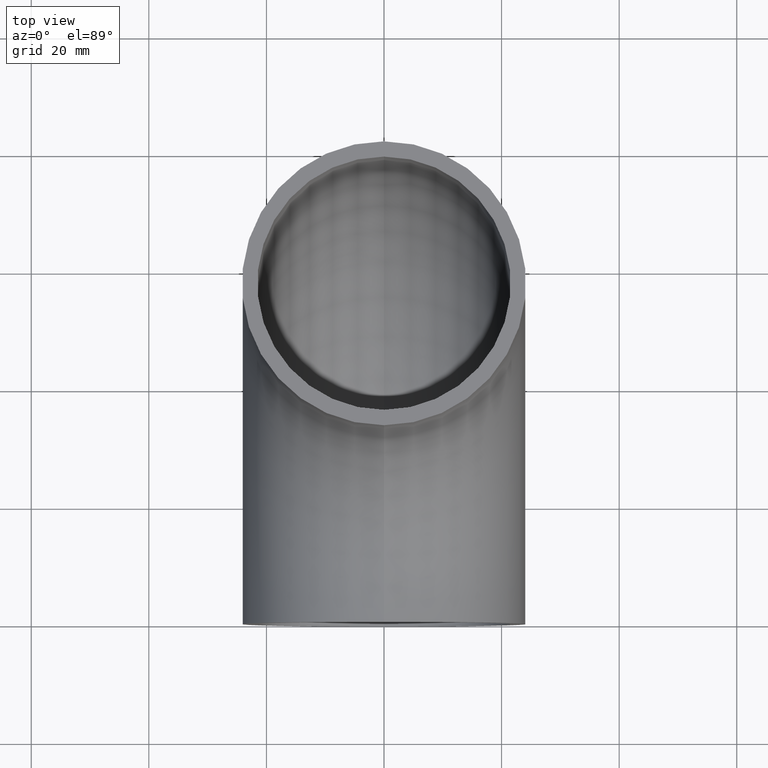
[diagram: clean part render]
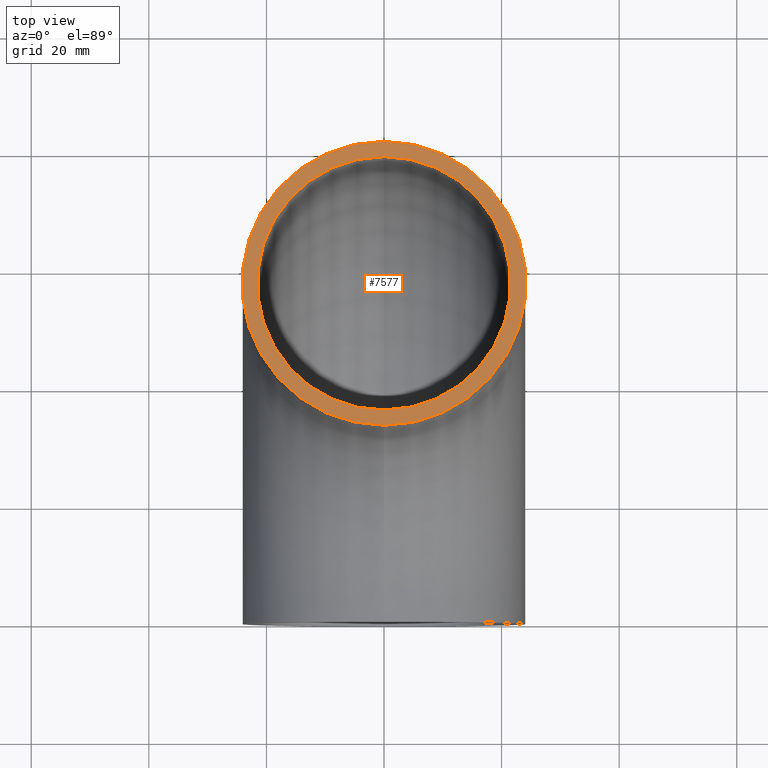
[diagram: same view with one face highlighted and labeled with its STEP entity id]
A machine part, top view. The second image highlights one B-rep face of the part: STEP entity #7577.
In plain terms, the highlighted planar face has unit normal (0, 0, 1).
Its self-contained STEP definition (entity closure, byte-faithful):
#124 = CARTESIAN_POINT ( 'NONE',  ( 0.0000000000000000000, 57.00000000000000000, -3.490243377569956500E-015 ) ) ;
#152 = ORIENTED_EDGE ( 'NONE', *, *, #7224, .T. ) ;
#188 = VERTEX_POINT ( 'NONE', #1510 ) ;
#198 = CARTESIAN_POINT ( 'NONE',  ( 0.0000000000000000000, 35.45000000000000300, -2.170686451488683500E-015 ) ) ;
#316 = DIRECTION ( 'NONE',  ( 0.0000000000000000000, 6.123233995736766000E-017, 1.000000000000000000 ) ) ;
#490 = VERTEX_POINT ( 'NONE', #198 ) ;
#679 = PLANE ( 'NONE',  #7261 ) ;
#1160 = CARTESIAN_POINT ( 'NONE',  ( 0.0000000000000000000, 57.00000000000000000, -3.490243377569956500E-015 ) ) ;
#1510 = CARTESIAN_POINT ( 'NONE',  ( 0.0000000000000000000, 81.15000000000000600, -4.969004387540385400E-015 ) ) ;
#1727 = DIRECTION ( 'NONE',  ( 0.0000000000000000000, 6.123233995736766000E-017, 1.000000000000000000 ) ) ;
#1777 = EDGE_CURVE ( 'NONE', #5979, #188, #5485, .T. ) ;
#1787 = CIRCLE ( 'NONE', #8798, 24.14999999999999900 ) ;
#1840 = DIRECTION ( 'NONE',  ( 0.0000000000000000000, -1.000000000000000000, 6.123233995736767300E-017 ) ) ;
#2279 = AXIS2_PLACEMENT_3D ( 'NONE', #4430, #3544, #3508 ) ;
#2821 = FACE_OUTER_BOUND ( 'NONE', #9007, .T. ) ;
#2904 = EDGE_CURVE ( 'NONE', #7886, #490, #4942, .T. ) ;
#3302 = DIRECTION ( 'NONE',  ( 0.0000000000000000000, 6.123233995736766000E-017, 1.000000000000000000 ) ) ;
#3508 = DIRECTION ( 'NONE',  ( 0.0000000000000000000, -1.000000000000000000, 6.123233995736766000E-017 ) ) ;
#3544 = DIRECTION ( 'NONE',  ( 0.0000000000000000000, 6.123233995736766000E-017, 1.000000000000000000 ) ) ;
#4430 = CARTESIAN_POINT ( 'NONE',  ( 0.0000000000000000000, 57.00000000000000000, -3.490243377569956500E-015 ) ) ;
#4942 = CIRCLE ( 'NONE', #2279, 21.55000000000000100 ) ;
#5485 = CIRCLE ( 'NONE', #9484, 24.14999999999999900 ) ;
#5979 = VERTEX_POINT ( 'NONE', #10712 ) ;
#6182 = ORIENTED_EDGE ( 'NONE', *, *, #2904, .F. ) ;
#6446 = CARTESIAN_POINT ( 'NONE',  ( 0.0000000000000000000, 57.00000000000000000, -3.490243377569956500E-015 ) ) ;
#6732 = ORIENTED_EDGE ( 'NONE', *, *, #1777, .T. ) ;
#6826 = EDGE_LOOP ( 'NONE', ( #10045, #6182 ) ) ;
#7224 = EDGE_CURVE ( 'NONE', #188, #5979, #1787, .T. ) ;
#7261 = AXIS2_PLACEMENT_3D ( 'NONE', #6446, #3302, #7307 ) ;
#7273 = DIRECTION ( 'NONE',  ( 0.0000000000000000000, -1.000000000000000000, 6.123233995736766000E-017 ) ) ;
#7307 = DIRECTION ( 'NONE',  ( 0.0000000000000000000, -1.000000000000000000, 6.123233995736766000E-017 ) ) ;
#7569 = EDGE_CURVE ( 'NONE', #490, #7886, #10576, .T. ) ;
#7577 = ADVANCED_FACE ( 'NONE', ( #9942, #2821 ), #679, .T. ) ;
#7886 = VERTEX_POINT ( 'NONE', #8061 ) ;
#8061 = CARTESIAN_POINT ( 'NONE',  ( 0.0000000000000000000, 78.55000000000001100, -4.809800303651230200E-015 ) ) ;
#8554 = DIRECTION ( 'NONE',  ( 0.0000000000000000000, -1.000000000000000000, 6.123233995736767300E-017 ) ) ;
#8798 = AXIS2_PLACEMENT_3D ( 'NONE', #1160, #316, #8554 ) ;
#8846 = DIRECTION ( 'NONE',  ( 0.0000000000000000000, 6.123233995736766000E-017, 1.000000000000000000 ) ) ;
#9007 = EDGE_LOOP ( 'NONE', ( #6732, #152 ) ) ;
#9130 = AXIS2_PLACEMENT_3D ( 'NONE', #9641, #8846, #7273 ) ;
#9484 = AXIS2_PLACEMENT_3D ( 'NONE', #124, #1727, #1840 ) ;
#9641 = CARTESIAN_POINT ( 'NONE',  ( 0.0000000000000000000, 57.00000000000000000, -3.490243377569956500E-015 ) ) ;
#9942 = FACE_BOUND ( 'NONE', #6826, .T. ) ;
#10045 = ORIENTED_EDGE ( 'NONE', *, *, #7569, .F. ) ;
#10576 = CIRCLE ( 'NONE', #9130, 21.55000000000000100 ) ;
#10712 = CARTESIAN_POINT ( 'NONE',  ( 0.0000000000000000000, 32.85000000000000100, -2.011482367599527500E-015 ) ) ;